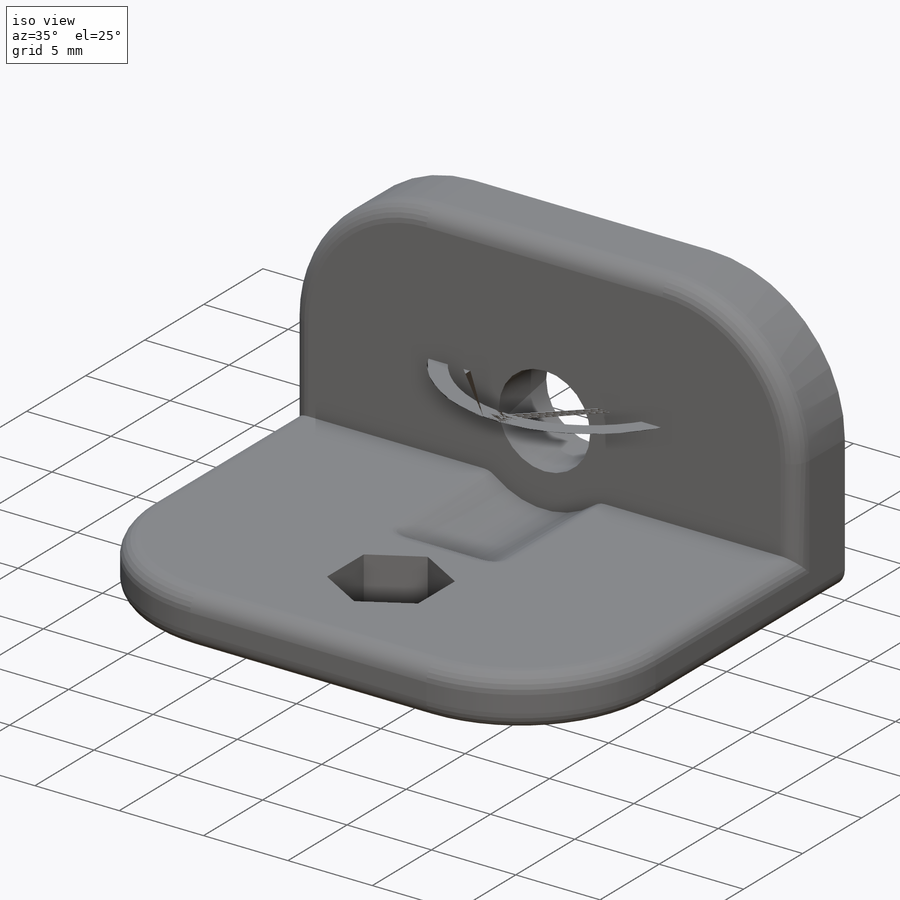
[diagram: iso view]
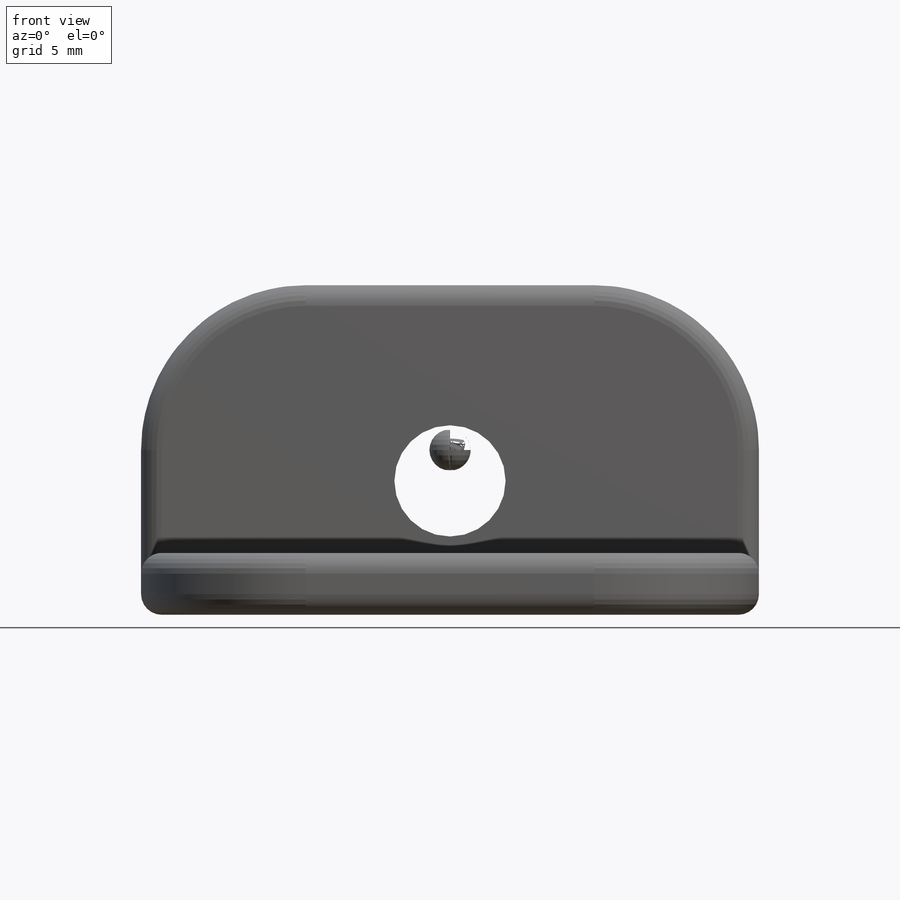
[diagram: front view]
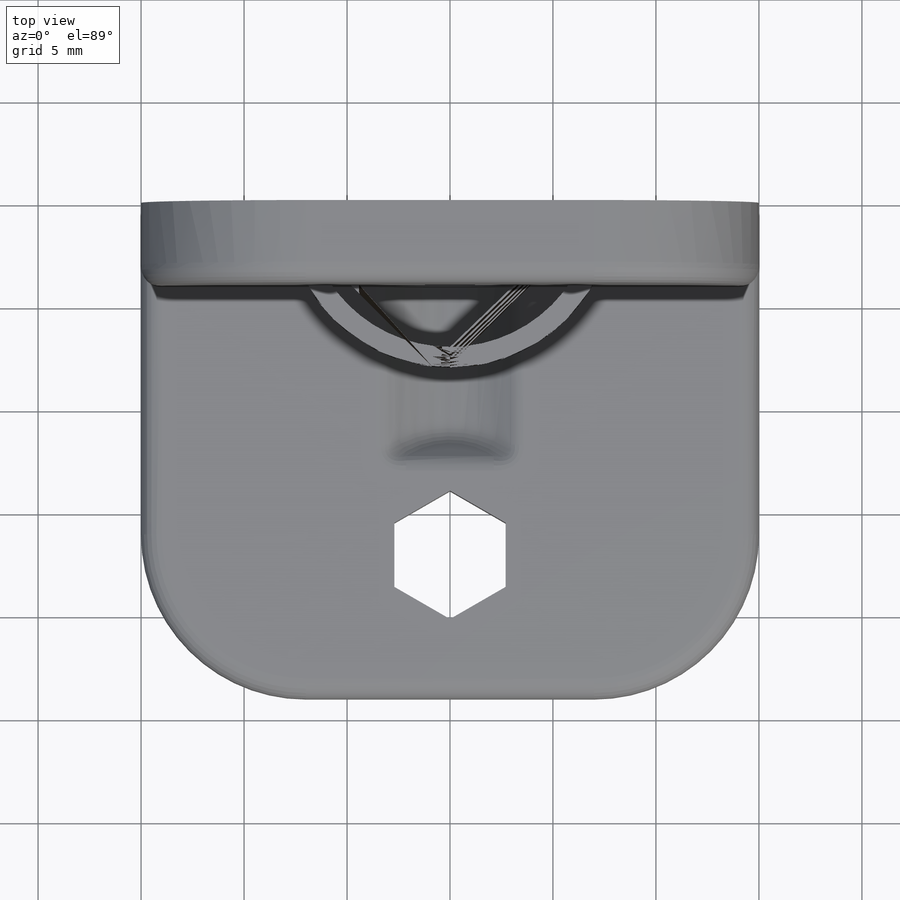
[diagram: top view]
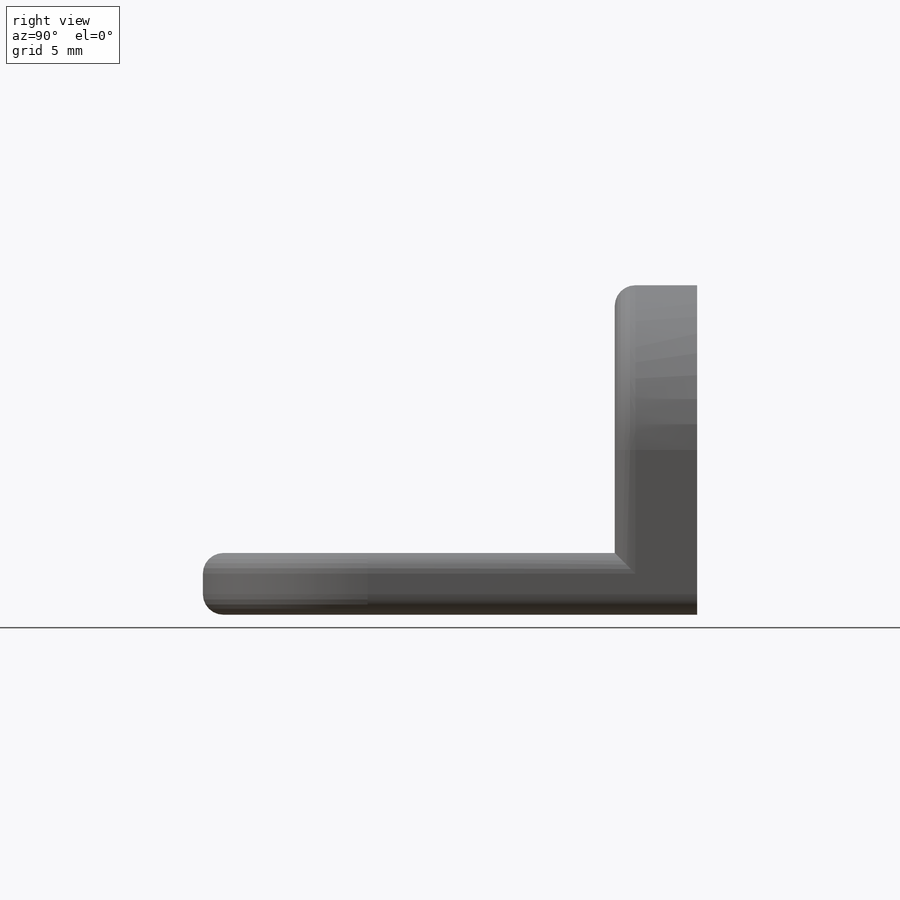
[diagram: right view]
SOLIDWORKS PART (.sldprt)
format: sldprt  version: not decoded by parser v0  size: 381,440 bytes
history: native  units: mm
features: sketch x4, fillet x3, extrude x2, cut_extrude x2, material x1, chamfer x1 (+13 scaffold rows collapsed)
feature tree (26):
  scaffold x13  (default folders/planes/origin — collapsed)
  material  "ABS"
  sketch  "Sketch1"  dims[c1.D3=5.4mm c1.D4=5.4mm c1.D1=30.0mm c1.D2=16.0mm c2.D4=9.5mm]
  extrude  "Boss-Extrude1"  Depth=4mm
  sketch  "Sketch2"  dims[D1=3.0mm]
  extrude  "Boss-Extrude2"  Depth=20mm
  sketch  "Sketch3"  dims[c1.D1=5.0mm c1.D2=5.4mm c2.D1=~7.199864mm c2.D2=7.0mm c3.D1=7.0mm]
  cut_extrude  "Cut-Extrude1"  [1 undecoded]
  sketch  "Sketch4"  dims[D1=9.5mm]
  cut_extrude  "Cut-Extrude2"  Depth=7mm
  chamfer  "Chamfer1"  Distance=1.5mm Angle=45deg
  fillet  "Fillet5"  Radius=1mm
  fillet  "Fillet6"  Radius=8mm
  fillet  "Fillet7"  Radius=1mm
decode coverage: 11 of 12 modeling features carry decoded parameters
note: ~ marks probable driven/reference dimensions
note: 1 parameter value undecoded
note: suppression state not decoded; provenance and decode notes live in map.json
